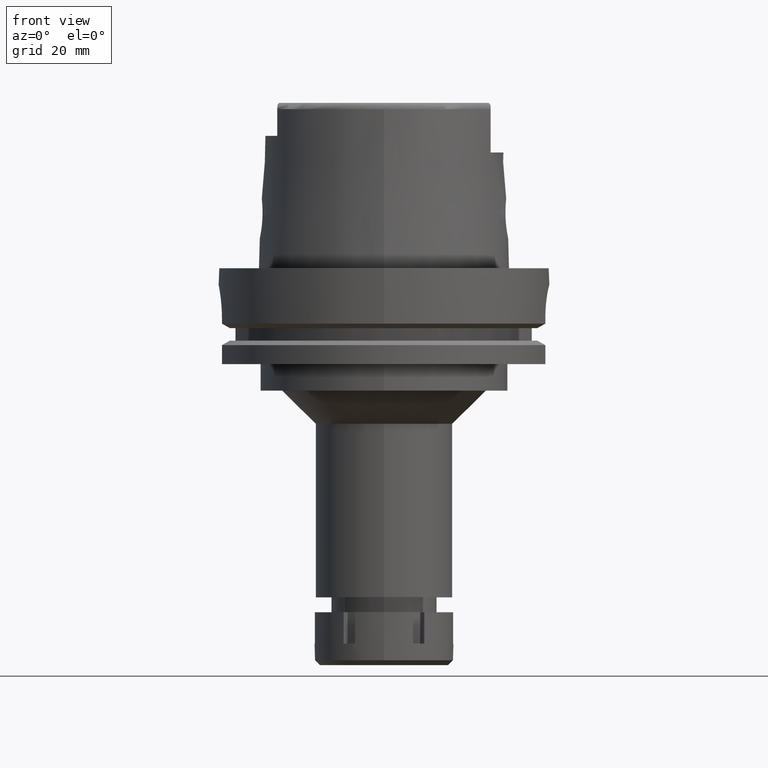
[diagram: clean part render]
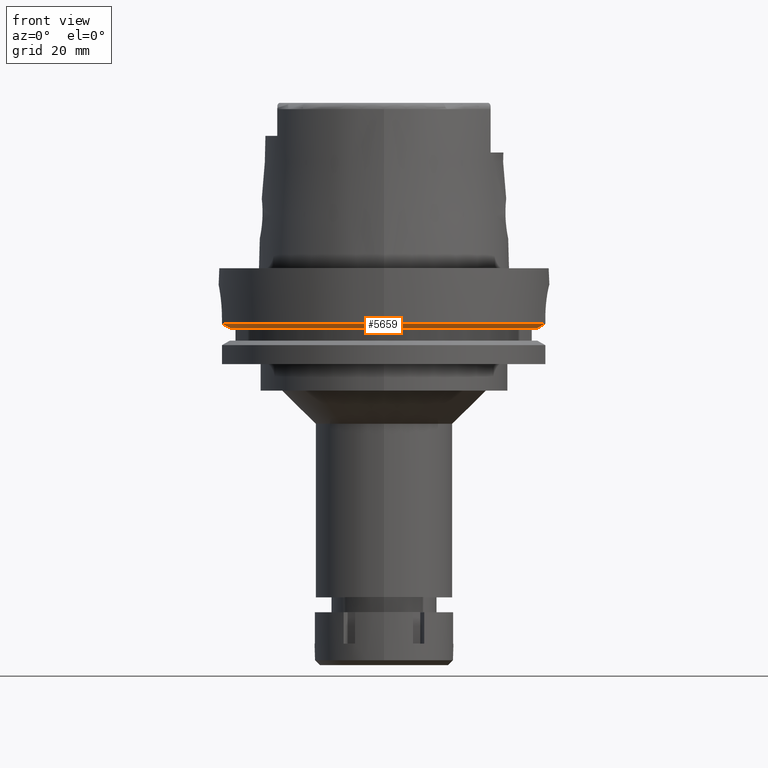
[diagram: same view with one face highlighted and labeled with its STEP entity id]
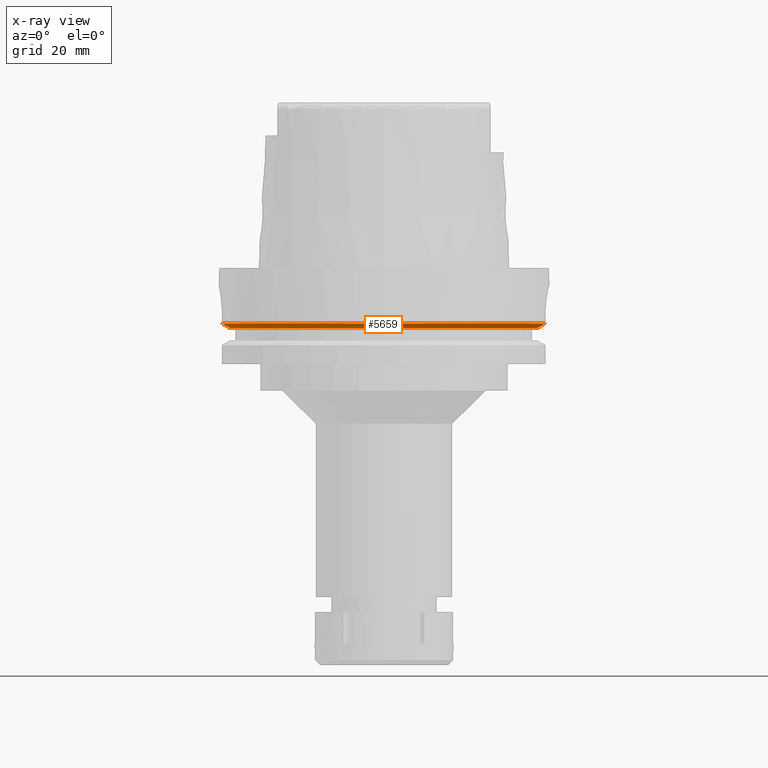
[diagram: x-ray of the same camera — body ghosted, the highlighted face saturated]
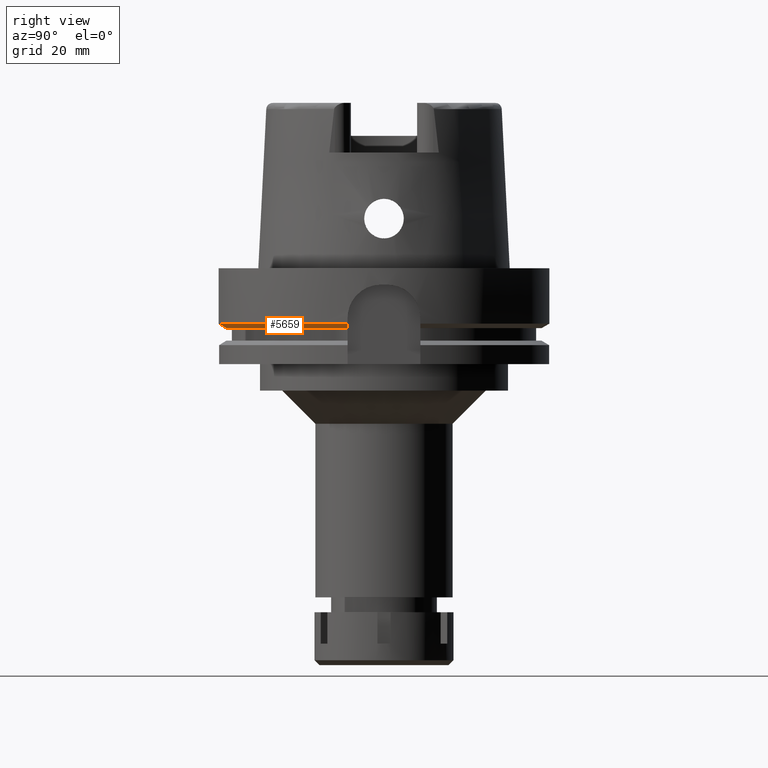
[diagram: same view with one face highlighted and labeled with its STEP entity id]
A machine part, front view. The second image highlights one B-rep face of the part: STEP entity #5659.
The next image is the same camera in x-ray: the body ghosted, the highlighted face saturated — about 0% of this face is hidden behind the body in this view.
A second angle (right view) of the same face is appended — the face is thin or edge-on in the first view.
In plain terms, the highlighted conical surface has half-angle 60 deg.
Its self-contained STEP definition (entity closure, byte-faithful):
#237 = EDGE_CURVE ( 'NONE', #853, #1798, #1748, .T. ) ;
#365 = DIRECTION ( 'NONE',  ( 0.0000000000000000000, -1.000000000000000000, 0.0000000000000000000 ) ) ;
#450 = DIRECTION ( 'NONE',  ( 0.0000000000000000000, 0.0000000000000000000, 1.000000000000000000 ) ) ;
#574 = EDGE_CURVE ( 'NONE', #2017, #2077, #2203, .T. ) ;
#797 = CARTESIAN_POINT ( 'NONE',  ( 46.33477721644000269, -11.00000000000000000, -18.12500000000000000 ) ) ;
#853 = VERTEX_POINT ( 'NONE', #5606 ) ;
#925 = DIRECTION ( 'NONE',  ( 0.0000000000000000000, 0.0000000000000000000, 1.000000000000000000 ) ) ;
#1234 = CARTESIAN_POINT ( 'NONE',  ( -46.56083740329999898, -10.00000000000000000, -18.12500000000000000 ) ) ;
#1327 = FACE_OUTER_BOUND ( 'NONE', #5412, .T. ) ;
#1388 = CARTESIAN_POINT ( 'NONE',  ( 47.14851446809999658, -11.00000000000000000, -17.66774350266999960 ) ) ;
#1667 = EDGE_CURVE ( 'NONE', #853, #2710, #4730, .T. ) ;
#1668 = CARTESIAN_POINT ( 'NONE',  ( -48.98979485565999425, -10.00000000000000000, -16.75240473580999989 ) ) ;
#1748 = B_SPLINE_CURVE_WITH_KNOTS ( 'NONE', 3,
 ( #1234, #4182, #3112, #3595, #5218, #1844 ),
 .UNSPECIFIED., .F., .F.,
 ( 4, 1, 1, 4 ),
 ( 0.0000000000000000000, 0.3333333333333000081, 0.6666666666667000474, 1.000000000000000000 ),
 .UNSPECIFIED. ) ;
#1798 = VERTEX_POINT ( 'NONE', #1668 ) ;
#1844 = CARTESIAN_POINT ( 'NONE',  ( -48.98979485565999425, -10.00000000000000000, -16.75240473580999989 ) ) ;
#1976 = DIRECTION ( 'NONE',  ( 0.0000000000000000000, 0.0000000000000000000, 1.000000000000000000 ) ) ;
#2017 = VERTEX_POINT ( 'NONE', #4725 ) ;
#2041 = CARTESIAN_POINT ( 'NONE',  ( 0.0000000000000000000, 0.0000000000000000000, -18.12500000000000000 ) ) ;
#2077 = VERTEX_POINT ( 'NONE', #3804 ) ;
#2203 = CIRCLE ( 'NONE', #4549, 50.00000000000000000 ) ;
#2239 = CARTESIAN_POINT ( 'NONE',  ( 0.0000000000000000000, 0.0000000000000000000, -16.75240473580999989 ) ) ;
#2327 = DIRECTION ( 'NONE',  ( -0.9797958971132723072, -0.1999999999999946265, 0.0000000000000000000 ) ) ;
#2497 = ORIENTED_EDGE ( 'NONE', *, *, #1667, .T. ) ;
#2608 = CONICAL_SURFACE ( 'NONE', #5048, 48.81129763208999606, 1.047197551196400456 ) ;
#2710 = VERTEX_POINT ( 'NONE', #5098 ) ;
#2797 = DIRECTION ( 'NONE',  ( 0.0000000000000000000, 1.000000000000000000, 0.0000000000000000000 ) ) ;
#2809 = AXIS2_PLACEMENT_3D ( 'NONE', #3642, #450, #2327 ) ;
#2835 = EDGE_CURVE ( 'NONE', #2077, #2710, #5774, .T. ) ;
#3112 = CARTESIAN_POINT ( 'NONE',  ( -47.37076227628000424, -10.00000000000000000, -17.66769351206999872 ) ) ;
#3590 = CIRCLE ( 'NONE', #2809, 49.99999999999997868 ) ;
#3595 = CARTESIAN_POINT ( 'NONE',  ( -48.18041161677000161, -10.00000000000000000, -17.21015586611000003 ) ) ;
#3609 = ORIENTED_EDGE ( 'NONE', *, *, #574, .F. ) ;
#3642 = CARTESIAN_POINT ( 'NONE',  ( 0.0000000000000000000, 0.0000000000000000000, -16.75240473580999989 ) ) ;
#3646 = DIRECTION ( 'NONE',  ( 0.0000000000000000000, 0.0000000000000000000, 1.000000000000000000 ) ) ;
#3804 = CARTESIAN_POINT ( 'NONE',  ( 48.77499359303000404, -11.00000000000000000, -16.75240473580999989 ) ) ;
#4051 = AXIS2_PLACEMENT_3D ( 'NONE', #2041, #1976, #4823 ) ;
#4087 = CARTESIAN_POINT ( 'NONE',  ( 47.96191616323000062, -11.00000000000000000, -17.21020456769999996 ) ) ;
#4176 = CARTESIAN_POINT ( 'NONE',  ( 48.50399904748000068, -11.00000000000000000, -16.90503024962000111 ) ) ;
#4182 = CARTESIAN_POINT ( 'NONE',  ( -46.83084020607000042, -10.00000000000000000, -17.97258933137000270 ) ) ;
#4396 = ORIENTED_EDGE ( 'NONE', *, *, #5972, .F. ) ;
#4549 = AXIS2_PLACEMENT_3D ( 'NONE', #2239, #3646, #365 ) ;
#4725 = CARTESIAN_POINT ( 'NONE',  ( 0.0000000000000000000, -50.00000000000000000, -16.75240473580999989 ) ) ;
#4730 = CIRCLE ( 'NONE', #4051, 47.62259526419000366 ) ;
#4823 = DIRECTION ( 'NONE',  ( -0.9777047459300259868, -0.2099843560504055240, 0.0000000000000000000 ) ) ;
#5048 = AXIS2_PLACEMENT_3D ( 'NONE', #5119, #925, #2797 ) ;
#5057 = CARTESIAN_POINT ( 'NONE',  ( 48.77499359303000404, -11.00000000000000000, -16.75240473580999989 ) ) ;
#5085 = CARTESIAN_POINT ( 'NONE',  ( 46.60605711264999940, -11.00000000000000000, -17.97261191788999923 ) ) ;
#5098 = CARTESIAN_POINT ( 'NONE',  ( 46.33477721644000269, -11.00000000000000000, -18.12500000000000000 ) ) ;
#5119 = CARTESIAN_POINT ( 'NONE',  ( 0.0000000000000000000, 0.0000000000000000000, -17.43870236789999950 ) ) ;
#5218 = CARTESIAN_POINT ( 'NONE',  ( -48.72002593967000195, -10.00000000000000000, -16.90500907969000011 ) ) ;
#5412 = EDGE_LOOP ( 'NONE', ( #2497, #5693, #3609, #4396, #5509 ) ) ;
#5509 = ORIENTED_EDGE ( 'NONE', *, *, #237, .F. ) ;
#5606 = CARTESIAN_POINT ( 'NONE',  ( -46.56083740329999898, -10.00000000000000000, -18.12500000000000000 ) ) ;
#5659 = ADVANCED_FACE ( 'NONE', ( #1327 ), #2608, .T. ) ;
#5693 = ORIENTED_EDGE ( 'NONE', *, *, #2835, .F. ) ;
#5774 = B_SPLINE_CURVE_WITH_KNOTS ( 'NONE', 3,
 ( #5057, #4176, #4087, #1388, #5085, #797 ),
 .UNSPECIFIED., .F., .F.,
 ( 4, 1, 1, 4 ),
 ( 0.0000000000000000000, 0.3333333333333000081, 0.6666666666667000474, 1.000000000000000000 ),
 .UNSPECIFIED. ) ;
#5972 = EDGE_CURVE ( 'NONE', #1798, #2017, #3590, .T. ) ;